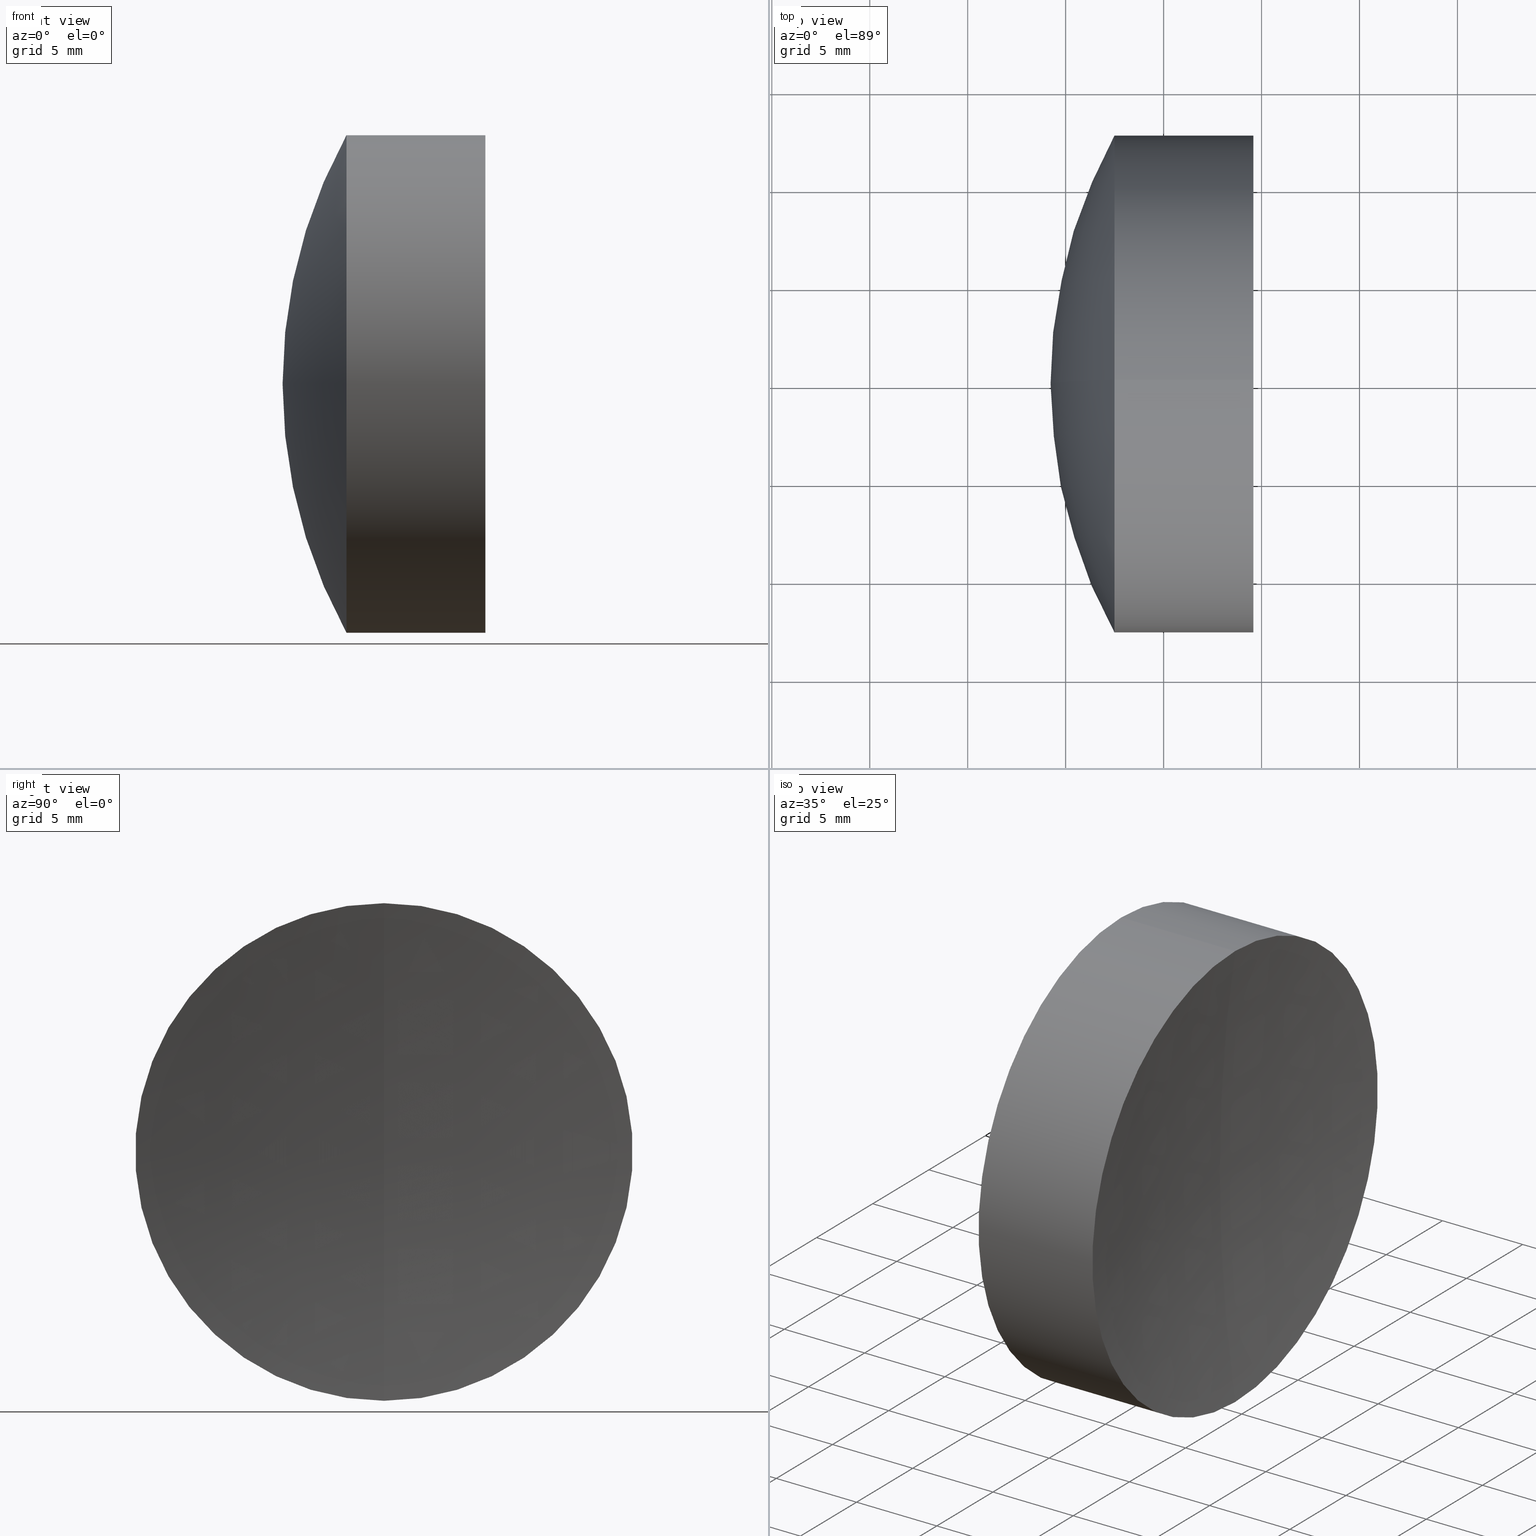
[diagram: canonical four-view strip — front | top / right | iso, engineering-drawing reading convention]
A machine part, canonical four-view strip (front | top / right | iso — engineering-drawing reading convention). The complete STEP part file that produces these views, byte-faithful:
ISO-10303-21;
HEADER;
FILE_DESCRIPTION (( 'STEP AP214' ),
    '1' );
FILE_NAME ('145164.STEP',
    '2019-06-07T06:22:06',
    ( 'user' ),
    ( '΢���й�' ),
    'SwSTEP 2.0',
    'SolidWorks 2016',
    '' );
FILE_SCHEMA (( 'AUTOMOTIVE_DESIGN' ));
ENDSEC;

DATA;
#1 = EDGE_CURVE ( 'NONE', #6, #327, #201, .T. ) ;
#2 = ORIENTED_EDGE ( 'NONE', *, *, #245, .T. ) ;
#3 = VECTOR ( 'NONE', #169, 1000.000000000000000 ) ;
#4 = DIRECTION ( 'NONE',  ( 0.0000000000000000000, 1.000000000000000000, 0.0000000000000000000 ) ) ;
#5 = AXIS2_PLACEMENT_3D ( 'NONE', #113, #80, #100 ) ;
#6 = VERTEX_POINT ( 'NONE', #75 ) ;
#7 = ORIENTED_EDGE ( 'NONE', *, *, #96, .F. ) ;
#8 = EDGE_CURVE ( 'NONE', #241, #327, #228, .T. ) ;
#9 = SPHERICAL_SURFACE ( 'NONE', #210, 84.92000000000000200 ) ;
#10 = DIRECTION ( 'NONE',  ( 0.0000000000000000000, 0.0000000000000000000, 1.000000000000000000 ) ) ;
#11 = PRODUCT ( '145164', '145164', '', ( #26 ) ) ;
#12 = EDGE_LOOP ( 'NONE', ( #7, #312, #51 ) ) ;
#13 = ORIENTED_EDGE ( 'NONE', *, *, #19, .F. ) ;
#14 = EDGE_CURVE ( 'NONE', #327, #318, #218, .T. ) ;
#15 = EDGE_CURVE ( 'NONE', #241, #6, #224, .T. ) ;
#16 = VERTEX_POINT ( 'NONE', #69 ) ;
#17 = ADVANCED_FACE ( 'NONE', ( #196 ), #195, .F. ) ;
#18 = ADVANCED_FACE ( 'NONE', ( #182 ), #181, .T. ) ;
#19 = EDGE_CURVE ( 'NONE', #6, #160, #177, .T. ) ;
#20 = APPLICATION_CONTEXT ( 'automotive_design' ) ;
#21 = ORIENTED_EDGE ( 'NONE', *, *, #114, .F. ) ;
#22 =( NAMED_UNIT ( * ) SI_UNIT ( $, .STERADIAN. ) SOLID_ANGLE_UNIT ( ) );
#23 = ORIENTED_EDGE ( 'NONE', *, *, #8, .F. ) ;
#24 = DIRECTION ( 'NONE',  ( 0.0000000000000000000, 0.0000000000000000000, 1.000000000000000000 ) ) ;
#25 = FILL_AREA_STYLE ('',( #56 ) ) ;
#26 = PRODUCT_CONTEXT ( 'NONE', #343, 'mechanical' ) ;
#27 =( LENGTH_UNIT ( ) NAMED_UNIT ( * ) SI_UNIT ( .MILLI., .METRE. ) );
#28 = CARTESIAN_POINT ( 'NONE',  ( 128.5502464302756800, 0.0000000000000000000, 0.0000000000000000000 ) ) ;
#29 = STYLED_ITEM ( 'NONE', ( #61 ), #211 ) ;
#30 = ORIENTED_EDGE ( 'NONE', *, *, #245, .F. ) ;
#31 = VERTEX_POINT ( 'NONE', #237 ) ;
#32 = ORIENTED_EDGE ( 'NONE', *, *, #345, .T. ) ;
#33 = ORIENTED_EDGE ( 'NONE', *, *, #340, .T. ) ;
#34 = CARTESIAN_POINT ( 'NONE',  ( -0.5519199926577972300, 1.555301434917140600E-015, -12.70000000000001700 ) ) ;
#35 = DIRECTION ( 'NONE',  ( -1.000000000000000000, -0.0000000000000000000, -0.0000000000000000000 ) ) ;
#36 = EDGE_CURVE ( 'NONE', #327, #6, #191, .T. ) ;
#37 = DIRECTION ( 'NONE',  ( -1.000000000000000000, -0.0000000000000000000, -0.0000000000000000000 ) ) ;
#38 = EDGE_CURVE ( 'NONE', #84, #188, #176, .T. ) ;
#39 = ORIENTED_EDGE ( 'NONE', *, *, #114, .T. ) ;
#40 = ORIENTED_EDGE ( 'NONE', *, *, #19, .T. ) ;
#41 = CARTESIAN_POINT ( 'NONE',  ( 60.59024643027568400, 0.0000000000000000000, 6.240728188754496800E-016 ) ) ;
#42 = CARTESIAN_POINT ( 'NONE',  ( 128.5502464302756800, 0.0000000000000000000, 0.0000000000000000000 ) ) ;
#43 = CARTESIAN_POINT ( 'NONE',  ( 41.83024643027569300, 0.0000000000000000000, -9.252400508641304000E-015 ) ) ;
#44 = ORIENTED_EDGE ( 'NONE', *, *, #96, .T. ) ;
#45 = EDGE_CURVE ( 'NONE', #303, #84, #214, .T. ) ;
#46 = SPHERICAL_SURFACE ( 'NONE', #146, 84.92000000000000200 ) ;
#47 = DIRECTION ( 'NONE',  ( 0.0000000000000000000, 0.0000000000000000000, -1.000000000000000000 ) ) ;
#48 = ORIENTED_EDGE ( 'NONE', *, *, #1, .F. ) ;
#49 = AXIS2_PLACEMENT_3D ( 'NONE', #68, #4, #52 ) ;
#50 = DIRECTION ( 'NONE',  ( -1.000000000000000000, -0.0000000000000000000, -0.0000000000000000000 ) ) ;
#51 = ORIENTED_EDGE ( 'NONE', *, *, #38, .T. ) ;
#52 = DIRECTION ( 'NONE',  ( 0.0000000000000000000, 0.0000000000000000000, 1.000000000000000000 ) ) ;
#53 = EDGE_CURVE ( 'NONE', #84, #253, #172, .T. ) ;
#54 = DIRECTION ( 'NONE',  ( 0.0000000000000000000, 0.0000000000000000000, 1.000000000000000000 ) ) ;
#55 =( NAMED_UNIT ( * ) SI_UNIT ( $, .STERADIAN. ) SOLID_ANGLE_UNIT ( ) );
#56 = FILL_AREA_STYLE_COLOUR ( '', #85 ) ;
#57 = ORIENTED_EDGE ( 'NONE', *, *, #274, .F. ) ;
#58 = CIRCLE ( 'NONE', #164, 12.70000000000001900 ) ;
#59 = AXIS2_PLACEMENT_3D ( 'NONE', #28, #283, #231 ) ;
#60 = ORIENTED_EDGE ( 'NONE', *, *, #36, .F. ) ;
#61 = PRESENTATION_STYLE_ASSIGNMENT (( #126 ) ) ;
#62 = CIRCLE ( 'NONE', #173, 26.36000000000001000 ) ;
#63 = UNCERTAINTY_MEASURE_WITH_UNIT (LENGTH_MEASURE( 1.000000000000000100E-005 ), #141, 'distance_accuracy_value', 'NONE');
#64 = DIRECTION ( 'NONE',  ( 0.0000000000000000000, 0.0000000000000000000, -1.000000000000000000 ) ) ;
#65 = AXIS2_PLACEMENT_3D ( 'NONE', #87, #174, #106 ) ;
#66 = CARTESIAN_POINT ( 'NONE',  ( 44.58527516249046100, -1.555301434917136900E-015, 12.69999999999998500 ) ) ;
#67 =( LENGTH_UNIT ( ) NAMED_UNIT ( * ) SI_UNIT ( .MILLI., .METRE. ) );
#68 = CARTESIAN_POINT ( 'NONE',  ( 12.45024643027568300, 0.0000000000000000000, -1.105140665658876700E-014 ) ) ;
#69 = CARTESIAN_POINT ( 'NONE',  ( 34.23024643027567700, 0.0000000000000000000, -9.900116624007624700E-016 ) ) ;
#70 = CLOSED_SHELL ( 'NONE', ( #161, #140, #266, #77, #216, #18 ) ) ;
#71 = CARTESIAN_POINT ( 'NONE',  ( 60.59024643027568400, 0.0000000000000000000, 6.240728188754496800E-016 ) ) ;
#72 = AXIS2_PLACEMENT_3D ( 'NONE', #78, #236, #226 ) ;
#73 = CARTESIAN_POINT ( 'NONE',  ( 38.94353614673029500, 0.0000000000000000000, 0.0000000000000000000 ) ) ;
#74 = ADVANCED_FACE ( 'NONE', ( #167 ), #168, .F. ) ;
#75 = CARTESIAN_POINT ( 'NONE',  ( 38.94353614673029500, 1.555301434917138000E-015, -12.69999999999999400 ) ) ;
#76 = CARTESIAN_POINT ( 'NONE',  ( 38.94353614673029500, 0.0000000000000000000, 12.69999999999999400 ) ) ;
#77 = ADVANCED_FACE ( 'NONE', ( #149 ), #145, .T. ) ;
#78 = CARTESIAN_POINT ( 'NONE',  ( 12.45024643027568300, 0.0000000000000000000, -1.105140665658876700E-014 ) ) ;
#79 = ORIENTED_EDGE ( 'NONE', *, *, #90, .F. ) ;
#80 = DIRECTION ( 'NONE',  ( 0.0000000000000000000, -1.000000000000000000, -1.224646799147353200E-016 ) ) ;
#81 = SURFACE_STYLE_USAGE ( .BOTH. , #187 ) ;
#82 = DIRECTION ( 'NONE',  ( -1.000000000000000000, -0.0000000000000000000, -0.0000000000000000000 ) ) ;
#83 = PRESENTATION_LAYER_ASSIGNMENT (  '', '', ( #29 ) ) ;
#84 = VERTEX_POINT ( 'NONE', #334 ) ;
#85 = COLOUR_RGB ( '',1.000000000000000000, 1.000000000000000000, 1.000000000000000000 ) ;
#86 = FACE_OUTER_BOUND ( 'NONE', #12, .T. ) ;
#87 = CARTESIAN_POINT ( 'NONE',  ( 12.45024643027568300, 0.0000000000000000000, -1.105140665658876700E-014 ) ) ;
#88 = ORIENTED_EDGE ( 'NONE', *, *, #8, .T. ) ;
#89 = DIRECTION ( 'NONE',  ( -1.000000000000000000, -0.0000000000000000000, -0.0000000000000000000 ) ) ;
#90 = EDGE_CURVE ( 'NONE', #253, #31, #157, .T. ) ;
#91 = SURFACE_SIDE_STYLE ('',( #97 ) ) ;
#92 = CARTESIAN_POINT ( 'NONE',  ( -0.5519199926577972300, 0.0000000000000000000, 12.70000000000001700 ) ) ;
#93 = CARTESIAN_POINT ( 'NONE',  ( 37.49133736512716600, 0.0000000000000000000, 0.0000000000000000000 ) ) ;
#94 = SPHERICAL_SURFACE ( 'NONE', #162, 26.36000000000001000 ) ;
#95 = SHAPE_DEFINITION_REPRESENTATION ( #118, #136 ) ;
#96 = EDGE_CURVE ( 'NONE', #303, #188, #148, .T. ) ;
#97 = SURFACE_STYLE_FILL_AREA ( #294 ) ;
#98 = ORIENTED_EDGE ( 'NONE', *, *, #14, .T. ) ;
#99 = CYLINDRICAL_SURFACE ( 'NONE', #219, 12.70000000000001700 ) ;
#100 = DIRECTION ( 'NONE',  ( 0.0000000000000000000, 1.224646799147353200E-016, -1.000000000000000000 ) ) ;
#101 = COLOUR_RGB ( '',1.000000000000000000, 1.000000000000000000, 1.000000000000000000 ) ;
#102 = AXIS2_PLACEMENT_3D ( 'NONE', #313, #273, #123 ) ;
#103 = CIRCLE ( 'NONE', #203, 12.70000000000001700 ) ;
#104 = CARTESIAN_POINT ( 'NONE',  ( 12.45024643027568300, 0.0000000000000000000, -1.105140665658876700E-014 ) ) ;
#105 = AXIS2_PLACEMENT_3D ( 'NONE', #150, #82, #323 ) ;
#106 = DIRECTION ( 'NONE',  ( 0.0000000000000000000, -1.224646799147353200E-016, 1.000000000000000000 ) ) ;
#107 = ADVANCED_FACE ( 'NONE', ( #125 ), #124, .T. ) ;
#108 = CIRCLE ( 'NONE', #127, 29.38000000000000600 ) ;
#109 = CIRCLE ( 'NONE', #336, 26.36000000000001000 ) ;
#110 = CARTESIAN_POINT ( 'NONE',  ( 12.45024643027568300, 0.0000000000000000000, -1.105140665658876700E-014 ) ) ;
#111 = DIRECTION ( 'NONE',  ( 0.0000000000000000000, 0.0000000000000000000, 1.000000000000000000 ) ) ;
#112 = DIRECTION ( 'NONE',  ( 0.0000000000000000000, -1.000000000000000000, 0.0000000000000000000 ) ) ;
#113 = CARTESIAN_POINT ( 'NONE',  ( 128.5502464302756800, 0.0000000000000000000, 0.0000000000000000000 ) ) ;
#114 = EDGE_CURVE ( 'NONE', #232, #253, #117, .T. ) ;
#115 = EDGE_LOOP ( 'NONE', ( #13, #272, #98, #30 ) ) ;
#116 = CYLINDRICAL_SURFACE ( 'NONE', #105, 12.69999999999999400 ) ;
#117 = CIRCLE ( 'NONE', #215, 29.38000000000000600 ) ;
#118 = PRODUCT_DEFINITION_SHAPE ( 'NONE', 'NONE',  #320 ) ;
#119 = DIRECTION ( 'NONE',  ( 0.0000000000000000000, 0.0000000000000000000, 1.000000000000000000 ) ) ;
#120 = DIRECTION ( 'NONE',  ( -1.000000000000000000, -0.0000000000000000000, -0.0000000000000000000 ) ) ;
#121 = SPHERICAL_SURFACE ( 'NONE', #72, 29.37999999999999900 ) ;
#122 = AXIS2_PLACEMENT_3D ( 'NONE', #71, #138, #194 ) ;
#123 = DIRECTION ( 'NONE',  ( 0.0000000000000000000, 0.0000000000000000000, -1.000000000000000000 ) ) ;
#124 = CYLINDRICAL_SURFACE ( 'NONE', #132, 12.70000000000001700 ) ;
#125 = FACE_OUTER_BOUND ( 'NONE', #275, .T. ) ;
#126 = SURFACE_STYLE_USAGE ( .BOTH. , #91 ) ;
#127 = AXIS2_PLACEMENT_3D ( 'NONE', #286, #112, #339 ) ;
#128 = AXIS2_PLACEMENT_3D ( 'NONE', #73, #319, #163 ) ;
#129 = FACE_OUTER_BOUND ( 'NONE', #171, .T. ) ;
#130 = DIRECTION ( 'NONE',  ( 1.000000000000000000, 0.0000000000000000000, 0.0000000000000000000 ) ) ;
#131 = FACE_OUTER_BOUND ( 'NONE', #287, .T. ) ;
#132 = AXIS2_PLACEMENT_3D ( 'NONE', #143, #295, #54 ) ;
#133 = FACE_OUTER_BOUND ( 'NONE', #235, .T. ) ;
#134 = APPLICATION_PROTOCOL_DEFINITION ( 'draft international standard', 'automotive_design', 1998, #20 ) ;
#135 = DIRECTION ( 'NONE',  ( 0.0000000000000000000, -1.224646799147353200E-016, 1.000000000000000000 ) ) ;
#136 = ADVANCED_BREP_SHAPE_REPRESENTATION ( '145164', ( #304, #211, #302 ), #223 ) ;
#137 = CIRCLE ( 'NONE', #151, 12.69999999999999400 ) ;
#138 = DIRECTION ( 'NONE',  ( -0.0000000000000000000, -1.000000000000000000, -0.0000000000000000000 ) ) ;
#139 = SURFACE_STYLE_FILL_AREA ( #25 ) ;
#140 = ADVANCED_FACE ( 'NONE', ( #153 ), #116, .T. ) ;
#141 =( LENGTH_UNIT ( ) NAMED_UNIT ( * ) SI_UNIT ( .MILLI., .METRE. ) );
#142 =( GEOMETRIC_REPRESENTATION_CONTEXT ( 3 ) GLOBAL_UNCERTAINTY_ASSIGNED_CONTEXT ( ( #315 ) ) GLOBAL_UNIT_ASSIGNED_CONTEXT ( ( #67, #254, #208 ) ) REPRESENTATION_CONTEXT ( 'NONE', 'WORKASPACE' ) );
#143 = CARTESIAN_POINT ( 'NONE',  ( -0.5519199926577972300, 0.0000000000000000000, 0.0000000000000000000 ) ) ;
#144 = DIRECTION ( 'NONE',  ( 0.0000000000000000000, 0.0000000000000000000, 1.000000000000000000 ) ) ;
#145 = SPHERICAL_SURFACE ( 'NONE', #122, 26.36000000000001000 ) ;
#146 = AXIS2_PLACEMENT_3D ( 'NONE', #42, #227, #64 ) ;
#147 = AXIS2_PLACEMENT_3D ( 'NONE', #154, #300, #111 ) ;
#148 = CIRCLE ( 'NONE', #5, 84.92000000000000200 ) ;
#149 = FACE_OUTER_BOUND ( 'NONE', #330, .T. ) ;
#150 = CARTESIAN_POINT ( 'NONE',  ( -0.8160621761658039000, 0.0000000000000000000, 0.0000000000000000000 ) ) ;
#151 = AXIS2_PLACEMENT_3D ( 'NONE', #93, #37, #332 ) ;
#152 = EDGE_CURVE ( 'NONE', #232, #31, #108, .T. ) ;
#153 = FACE_OUTER_BOUND ( 'NONE', #225, .T. ) ;
#154 = CARTESIAN_POINT ( 'NONE',  ( 12.45024643027568300, 0.0000000000000000000, -1.105140665658876700E-014 ) ) ;
#155 = STYLED_ITEM ( 'NONE', ( #183 ), #304 ) ;
#156 = DIRECTION ( 'NONE',  ( 0.0000000000000000000, 0.0000000000000000000, 1.000000000000000000 ) ) ;
#157 = CIRCLE ( 'NONE', #328, 12.70000000000001900 ) ;
#158 = AXIS2_PLACEMENT_3D ( 'NONE', #264, #89, #24 ) ;
#159 = VECTOR ( 'NONE', #290, 1000.000000000000000 ) ;
#160 = VERTEX_POINT ( 'NONE', #346 ) ;
#161 = ADVANCED_FACE ( 'NONE', ( #129 ), #121, .T. ) ;
#162 = AXIS2_PLACEMENT_3D ( 'NONE', #333, #206, #47 ) ;
#163 = DIRECTION ( 'NONE',  ( 0.0000000000000000000, 0.0000000000000000000, 1.000000000000000000 ) ) ;
#164 = AXIS2_PLACEMENT_3D ( 'NONE', #170, #120, #337 ) ;
#165 =( NAMED_UNIT ( * ) PLANE_ANGLE_UNIT ( ) SI_UNIT ( $, .RADIAN. ) );
#166 = EDGE_CURVE ( 'NONE', #318, #16, #109, .T. ) ;
#167 = FACE_OUTER_BOUND ( 'NONE', #263, .T. ) ;
#168 = SPHERICAL_SURFACE ( 'NONE', #147, 29.38000000000000600 ) ;
#169 = DIRECTION ( 'NONE',  ( -1.000000000000000000, -0.0000000000000000000, -0.0000000000000000000 ) ) ;
#170 = CARTESIAN_POINT ( 'NONE',  ( 38.94353614673030300, 0.0000000000000000000, 0.0000000000000000000 ) ) ;
#171 = EDGE_LOOP ( 'NONE', ( #23, #299, #60 ) ) ;
#172 = LINE ( 'NONE', #34, #159 ) ;
#173 = AXIS2_PLACEMENT_3D ( 'NONE', #205, #175, #156 ) ;
#174 = DIRECTION ( 'NONE',  ( -0.0000000000000000000, 1.000000000000000000, 1.224646799147353200E-016 ) ) ;
#175 = DIRECTION ( 'NONE',  ( 0.0000000000000000000, 1.000000000000000000, -0.0000000000000000000 ) ) ;
#176 = CIRCLE ( 'NONE', #59, 84.92000000000000200 ) ;
#177 = LINE ( 'NONE', #204, #186 ) ;
#178 = AXIS2_PLACEMENT_3D ( 'NONE', #331, #309, #279 ) ;
#179 = DIRECTION ( 'NONE',  ( 0.0000000000000000000, -1.000000000000000000, -1.224646799147353200E-016 ) ) ;
#180 = PRESENTATION_LAYER_ASSIGNMENT (  '', '', ( #155 ) ) ;
#181 = SPHERICAL_SURFACE ( 'NONE', #49, 29.37999999999999900 ) ;
#182 = FACE_OUTER_BOUND ( 'NONE', #322, .T. ) ;
#183 = PRESENTATION_STYLE_ASSIGNMENT (( #81 ) ) ;
#184 = FACE_OUTER_BOUND ( 'NONE', #212, .T. ) ;
#185 = MECHANICAL_DESIGN_GEOMETRIC_PRESENTATION_REPRESENTATION (  '', ( #155 ), #193 ) ;
#186 = VECTOR ( 'NONE', #50, 1000.000000000000000 ) ;
#187 = SURFACE_SIDE_STYLE ('',( #270 ) ) ;
#188 = VERTEX_POINT ( 'NONE', #213 ) ;
#189 = CYLINDRICAL_SURFACE ( 'NONE', #178, 12.69999999999999400 ) ;
#190 = DIRECTION ( 'NONE',  ( 0.0000000000000000000, 0.0000000000000000000, 1.000000000000000000 ) ) ;
#191 = CIRCLE ( 'NONE', #158, 12.69999999999999400 ) ;
#192 = COLOUR_RGB ( '',1.000000000000000000, 1.000000000000000000, 1.000000000000000000 ) ;
#193 =( GEOMETRIC_REPRESENTATION_CONTEXT ( 3 ) GLOBAL_UNCERTAINTY_ASSIGNED_CONTEXT ( ( #257 ) ) GLOBAL_UNIT_ASSIGNED_CONTEXT ( ( #27, #221, #55 ) ) REPRESENTATION_CONTEXT ( 'NONE', 'WORKASPACE' ) );
#194 = DIRECTION ( 'NONE',  ( 0.0000000000000000000, 0.0000000000000000000, -1.000000000000000000 ) ) ;
#195 = SPHERICAL_SURFACE ( 'NONE', #329, 29.38000000000000600 ) ;
#196 = FACE_OUTER_BOUND ( 'NONE', #307, .T. ) ;
#197 = UNCERTAINTY_MEASURE_WITH_UNIT (LENGTH_MEASURE( 1.000000000000000100E-005 ), #297, 'distance_accuracy_value', 'NONE');
#198 = FACE_OUTER_BOUND ( 'NONE', #115, .T. ) ;
#199 = AXIS2_PLACEMENT_3D ( 'NONE', #246, #248, #144 ) ;
#200 = VECTOR ( 'NONE', #259, 1000.000000000000000 ) ;
#201 = CIRCLE ( 'NONE', #128, 12.69999999999999400 ) ;
#202 = CARTESIAN_POINT ( 'NONE',  ( 41.83024643027568600, 0.0000000000000000000, -9.252400508641304000E-015 ) ) ;
#203 = AXIS2_PLACEMENT_3D ( 'NONE', #308, #347, #190 ) ;
#204 = CARTESIAN_POINT ( 'NONE',  ( -0.8160621761658039000, 1.555301434917138000E-015, -12.69999999999999400 ) ) ;
#205 = CARTESIAN_POINT ( 'NONE',  ( 60.59024643027568400, 0.0000000000000000000, 6.240728188754496800E-016 ) ) ;
#206 = DIRECTION ( 'NONE',  ( -0.0000000000000000000, -1.000000000000000000, -0.0000000000000000000 ) ) ;
#207 = DIRECTION ( 'NONE',  ( -1.000000000000000000, -0.0000000000000000000, -0.0000000000000000000 ) ) ;
#208 =( NAMED_UNIT ( * ) SI_UNIT ( $, .STERADIAN. ) SOLID_ANGLE_UNIT ( ) );
#209 = ORIENTED_EDGE ( 'NONE', *, *, #38, .F. ) ;
#210 = AXIS2_PLACEMENT_3D ( 'NONE', #289, #243, #296 ) ;
#211 = MANIFOLD_SOLID_BREP ( '��ת2', #280 ) ;
#212 = EDGE_LOOP ( 'NONE', ( #240, #32, #335, #79 ) ) ;
#213 = CARTESIAN_POINT ( 'NONE',  ( 43.63024643027569000, 0.0000000000000000000, -5.199850309179661400E-015 ) ) ;
#214 = CIRCLE ( 'NONE', #242, 12.70000000000001700 ) ;
#215 = AXIS2_PLACEMENT_3D ( 'NONE', #104, #292, #135 ) ;
#216 = ADVANCED_FACE ( 'NONE', ( #198 ), #189, .T. ) ;
#217 = DIRECTION ( 'NONE',  ( -1.000000000000000000, -0.0000000000000000000, -0.0000000000000000000 ) ) ;
#218 = LINE ( 'NONE', #252, #200 ) ;
#219 = AXIS2_PLACEMENT_3D ( 'NONE', #267, #217, #239 ) ;
#220 =( NAMED_UNIT ( * ) SI_UNIT ( $, .STERADIAN. ) SOLID_ANGLE_UNIT ( ) );
#221 =( NAMED_UNIT ( * ) PLANE_ANGLE_UNIT ( ) SI_UNIT ( $, .RADIAN. ) );
#222 = ORIENTED_EDGE ( 'NONE', *, *, #14, .F. ) ;
#223 =( GEOMETRIC_REPRESENTATION_CONTEXT ( 3 ) GLOBAL_UNCERTAINTY_ASSIGNED_CONTEXT ( ( #63 ) ) GLOBAL_UNIT_ASSIGNED_CONTEXT ( ( #141, #325, #22 ) ) REPRESENTATION_CONTEXT ( 'NONE', 'WORKASPACE' ) );
#224 = CIRCLE ( 'NONE', #65, 29.37999999999999900 ) ;
#225 = EDGE_LOOP ( 'NONE', ( #234, #40, #260, #222 ) ) ;
#226 = DIRECTION ( 'NONE',  ( 0.0000000000000000000, 0.0000000000000000000, 1.000000000000000000 ) ) ;
#227 = DIRECTION ( 'NONE',  ( -0.0000000000000000000, -1.000000000000000000, -0.0000000000000000000 ) ) ;
#228 = CIRCLE ( 'NONE', #102, 29.37999999999999900 ) ;
#229 = STYLED_ITEM ( 'NONE', ( #249 ), #136 ) ;
#230 = ORIENTED_EDGE ( 'NONE', *, *, #53, .T. ) ;
#231 = DIRECTION ( 'NONE',  ( 0.0000000000000000000, 0.0000000000000000000, 1.000000000000000000 ) ) ;
#232 = VERTEX_POINT ( 'NONE', #43 ) ;
#233 = CARTESIAN_POINT ( 'NONE',  ( 0.0000000000000000000, 0.0000000000000000000, 0.0000000000000000000 ) ) ;
#234 = ORIENTED_EDGE ( 'NONE', *, *, #36, .T. ) ;
#235 = EDGE_LOOP ( 'NONE', ( #256, #44, #209 ) ) ;
#236 = DIRECTION ( 'NONE',  ( 0.0000000000000000000, 1.000000000000000000, 0.0000000000000000000 ) ) ;
#237 = CARTESIAN_POINT ( 'NONE',  ( 38.94353614673030300, 0.0000000000000000000, 12.70000000000001000 ) ) ;
#238 = ADVANCED_FACE ( 'NONE', ( #133 ), #46, .F. ) ;
#239 = DIRECTION ( 'NONE',  ( 0.0000000000000000000, 0.0000000000000000000, 1.000000000000000000 ) ) ;
#240 = ORIENTED_EDGE ( 'NONE', *, *, #53, .F. ) ;
#241 = VERTEX_POINT ( 'NONE', #202 ) ;
#242 = AXIS2_PLACEMENT_3D ( 'NONE', #316, #207, #310 ) ;
#243 = DIRECTION ( 'NONE',  ( -0.0000000000000000000, -1.000000000000000000, -0.0000000000000000000 ) ) ;
#244 = DIRECTION ( 'NONE',  ( 0.0000000000000000000, 1.000000000000000000, 0.0000000000000000000 ) ) ;
#245 = EDGE_CURVE ( 'NONE', #160, #318, #137, .T. ) ;
#246 = CARTESIAN_POINT ( 'NONE',  ( 37.49133736512716600, 0.0000000000000000000, 0.0000000000000000000 ) ) ;
#247 = ORIENTED_EDGE ( 'NONE', *, *, #274, .T. ) ;
#248 = DIRECTION ( 'NONE',  ( -1.000000000000000000, -0.0000000000000000000, -0.0000000000000000000 ) ) ;
#249 = PRESENTATION_STYLE_ASSIGNMENT (( #271 ) ) ;
#250 = MECHANICAL_DESIGN_GEOMETRIC_PRESENTATION_REPRESENTATION (  '', ( #229 ), #269 ) ;
#251 = ORIENTED_EDGE ( 'NONE', *, *, #262, .F. ) ;
#252 = CARTESIAN_POINT ( 'NONE',  ( -0.8160621761658039000, 0.0000000000000000000, 12.69999999999999400 ) ) ;
#253 = VERTEX_POINT ( 'NONE', #278 ) ;
#254 =( NAMED_UNIT ( * ) PLANE_ANGLE_UNIT ( ) SI_UNIT ( $, .RADIAN. ) );
#255 = PRESENTATION_LAYER_ASSIGNMENT (  '', '', ( #229 ) ) ;
#256 = ORIENTED_EDGE ( 'NONE', *, *, #45, .F. ) ;
#257 = UNCERTAINTY_MEASURE_WITH_UNIT (LENGTH_MEASURE( 1.000000000000000100E-005 ), #27, 'distance_accuracy_value', 'NONE');
#258 = ORIENTED_EDGE ( 'NONE', *, *, #262, .T. ) ;
#259 = DIRECTION ( 'NONE',  ( -1.000000000000000000, -0.0000000000000000000, -0.0000000000000000000 ) ) ;
#260 = ORIENTED_EDGE ( 'NONE', *, *, #340, .F. ) ;
#261 = CARTESIAN_POINT ( 'NONE',  ( 37.49133736512716600, -1.555301434917138000E-015, 12.69999999999999600 ) ) ;
#262 = EDGE_CURVE ( 'NONE', #160, #16, #62, .T. ) ;
#263 = EDGE_LOOP ( 'NONE', ( #268, #39, #338 ) ) ;
#264 = CARTESIAN_POINT ( 'NONE',  ( 38.94353614673029500, 0.0000000000000000000, 0.0000000000000000000 ) ) ;
#265 = PRODUCT_DEFINITION_CONTEXT ( 'detailed design', #20, 'design' ) ;
#266 = ADVANCED_FACE ( 'NONE', ( #131 ), #94, .T. ) ;
#267 = CARTESIAN_POINT ( 'NONE',  ( -0.5519199926577972300, 0.0000000000000000000, 0.0000000000000000000 ) ) ;
#268 = ORIENTED_EDGE ( 'NONE', *, *, #152, .F. ) ;
#269 =( GEOMETRIC_REPRESENTATION_CONTEXT ( 3 ) GLOBAL_UNCERTAINTY_ASSIGNED_CONTEXT ( ( #197 ) ) GLOBAL_UNIT_ASSIGNED_CONTEXT ( ( #297, #165, #220 ) ) REPRESENTATION_CONTEXT ( 'NONE', 'WORKASPACE' ) );
#270 = SURFACE_STYLE_FILL_AREA ( #281 ) ;
#271 = SURFACE_STYLE_USAGE ( .BOTH. , #326 ) ;
#272 = ORIENTED_EDGE ( 'NONE', *, *, #1, .T. ) ;
#273 = DIRECTION ( 'NONE',  ( 0.0000000000000000000, -1.000000000000000000, 0.0000000000000000000 ) ) ;
#274 = EDGE_CURVE ( 'NONE', #31, #253, #58, .T. ) ;
#275 = EDGE_LOOP ( 'NONE', ( #317, #230, #57, #341 ) ) ;
#276 = LINE ( 'NONE', #92, #3 ) ;
#277 = EDGE_CURVE ( 'NONE', #303, #31, #276, .T. ) ;
#278 = CARTESIAN_POINT ( 'NONE',  ( 38.94353614673030300, 1.555301434917139600E-015, -12.70000000000002100 ) ) ;
#279 = DIRECTION ( 'NONE',  ( 0.0000000000000000000, 0.0000000000000000000, 1.000000000000000000 ) ) ;
#280 = CLOSED_SHELL ( 'NONE', ( #107, #238, #74, #17, #342, #324 ) ) ;
#281 = FILL_AREA_STYLE ('',( #282 ) ) ;
#282 = FILL_AREA_STYLE_COLOUR ( '', #192 ) ;
#283 = DIRECTION ( 'NONE',  ( 0.0000000000000000000, 1.000000000000000000, -0.0000000000000000000 ) ) ;
#284 = PRODUCT_RELATED_PRODUCT_CATEGORY ( 'part', '', ( #11 ) ) ;
#285 = DIRECTION ( 'NONE',  ( 0.0000000000000000000, 0.0000000000000000000, 1.000000000000000000 ) ) ;
#286 = CARTESIAN_POINT ( 'NONE',  ( 12.45024643027568300, 0.0000000000000000000, -1.105140665658876700E-014 ) ) ;
#287 = EDGE_LOOP ( 'NONE', ( #2, #321, #251 ) ) ;
#288 = APPLICATION_PROTOCOL_DEFINITION ( 'draft international standard', 'automotive_design', 1998, #343 ) ;
#289 = CARTESIAN_POINT ( 'NONE',  ( 128.5502464302756800, 0.0000000000000000000, 0.0000000000000000000 ) ) ;
#290 = DIRECTION ( 'NONE',  ( -1.000000000000000000, -0.0000000000000000000, -0.0000000000000000000 ) ) ;
#291 = ORIENTED_EDGE ( 'NONE', *, *, #166, .F. ) ;
#292 = DIRECTION ( 'NONE',  ( -0.0000000000000000000, 1.000000000000000000, 1.224646799147353200E-016 ) ) ;
#293 = CARTESIAN_POINT ( 'NONE',  ( 38.94353614673030300, 0.0000000000000000000, 0.0000000000000000000 ) ) ;
#294 = FILL_AREA_STYLE ('',( #344 ) ) ;
#295 = DIRECTION ( 'NONE',  ( -1.000000000000000000, -0.0000000000000000000, -0.0000000000000000000 ) ) ;
#296 = DIRECTION ( 'NONE',  ( 0.0000000000000000000, 0.0000000000000000000, -1.000000000000000000 ) ) ;
#297 =( LENGTH_UNIT ( ) NAMED_UNIT ( * ) SI_UNIT ( .MILLI., .METRE. ) );
#298 = ORIENTED_EDGE ( 'NONE', *, *, #15, .F. ) ;
#299 = ORIENTED_EDGE ( 'NONE', *, *, #15, .T. ) ;
#300 = DIRECTION ( 'NONE',  ( 0.0000000000000000000, 1.000000000000000000, 0.0000000000000000000 ) ) ;
#301 = CIRCLE ( 'NONE', #199, 12.69999999999999400 ) ;
#302 = AXIS2_PLACEMENT_3D ( 'NONE', #233, #10, #130 ) ;
#303 = VERTEX_POINT ( 'NONE', #66 ) ;
#304 = MANIFOLD_SOLID_BREP ( '��ת1', #70 ) ;
#305 = PRODUCT_DEFINITION_FORMATION_WITH_SPECIFIED_SOURCE ( '�κ�', '', #11, .NOT_KNOWN. ) ;
#306 = DIRECTION ( 'NONE',  ( 0.0000000000000000000, 1.224646799147353200E-016, -1.000000000000000000 ) ) ;
#307 = EDGE_LOOP ( 'NONE', ( #21, #311, #247 ) ) ;
#308 = CARTESIAN_POINT ( 'NONE',  ( 44.58527516249045400, 0.0000000000000000000, 0.0000000000000000000 ) ) ;
#309 = DIRECTION ( 'NONE',  ( -1.000000000000000000, -0.0000000000000000000, -0.0000000000000000000 ) ) ;
#310 = DIRECTION ( 'NONE',  ( 0.0000000000000000000, 0.0000000000000000000, 1.000000000000000000 ) ) ;
#311 = ORIENTED_EDGE ( 'NONE', *, *, #152, .T. ) ;
#312 = ORIENTED_EDGE ( 'NONE', *, *, #345, .F. ) ;
#313 = CARTESIAN_POINT ( 'NONE',  ( 12.45024643027568300, 0.0000000000000000000, -1.105140665658876700E-014 ) ) ;
#314 = MECHANICAL_DESIGN_GEOMETRIC_PRESENTATION_REPRESENTATION (  '', ( #29 ), #142 ) ;
#315 = UNCERTAINTY_MEASURE_WITH_UNIT (LENGTH_MEASURE( 1.000000000000000100E-005 ), #67, 'distance_accuracy_value', 'NONE');
#316 = CARTESIAN_POINT ( 'NONE',  ( 44.58527516249045400, 0.0000000000000000000, 0.0000000000000000000 ) ) ;
#317 = ORIENTED_EDGE ( 'NONE', *, *, #45, .T. ) ;
#318 = VERTEX_POINT ( 'NONE', #261 ) ;
#319 = DIRECTION ( 'NONE',  ( -1.000000000000000000, -0.0000000000000000000, -0.0000000000000000000 ) ) ;
#320 = PRODUCT_DEFINITION ( 'δ֪', '', #305, #265 ) ;
#321 = ORIENTED_EDGE ( 'NONE', *, *, #166, .T. ) ;
#322 = EDGE_LOOP ( 'NONE', ( #298, #88, #48 ) ) ;
#323 = DIRECTION ( 'NONE',  ( 0.0000000000000000000, 0.0000000000000000000, 1.000000000000000000 ) ) ;
#324 = ADVANCED_FACE ( 'NONE', ( #184 ), #99, .T. ) ;
#325 =( NAMED_UNIT ( * ) PLANE_ANGLE_UNIT ( ) SI_UNIT ( $, .RADIAN. ) );
#326 = SURFACE_SIDE_STYLE ('',( #139 ) ) ;
#327 = VERTEX_POINT ( 'NONE', #76 ) ;
#328 = AXIS2_PLACEMENT_3D ( 'NONE', #293, #35, #285 ) ;
#329 = AXIS2_PLACEMENT_3D ( 'NONE', #110, #244, #119 ) ;
#330 = EDGE_LOOP ( 'NONE', ( #291, #33, #258 ) ) ;
#331 = CARTESIAN_POINT ( 'NONE',  ( -0.8160621761658039000, 0.0000000000000000000, 0.0000000000000000000 ) ) ;
#332 = DIRECTION ( 'NONE',  ( 0.0000000000000000000, 0.0000000000000000000, 1.000000000000000000 ) ) ;
#333 = CARTESIAN_POINT ( 'NONE',  ( 60.59024643027568400, 0.0000000000000000000, 6.240728188754496800E-016 ) ) ;
#334 = CARTESIAN_POINT ( 'NONE',  ( 44.58527516249046100, 0.0000000000000000000, -12.69999999999998500 ) ) ;
#335 = ORIENTED_EDGE ( 'NONE', *, *, #277, .T. ) ;
#336 = AXIS2_PLACEMENT_3D ( 'NONE', #41, #179, #306 ) ;
#337 = DIRECTION ( 'NONE',  ( 0.0000000000000000000, 0.0000000000000000000, 1.000000000000000000 ) ) ;
#338 = ORIENTED_EDGE ( 'NONE', *, *, #90, .T. ) ;
#339 = DIRECTION ( 'NONE',  ( 0.0000000000000000000, 0.0000000000000000000, -1.000000000000000000 ) ) ;
#340 = EDGE_CURVE ( 'NONE', #318, #160, #301, .T. ) ;
#341 = ORIENTED_EDGE ( 'NONE', *, *, #277, .F. ) ;
#342 = ADVANCED_FACE ( 'NONE', ( #86 ), #9, .F. ) ;
#343 = APPLICATION_CONTEXT ( 'automotive_design' ) ;
#344 = FILL_AREA_STYLE_COLOUR ( '', #101 ) ;
#345 = EDGE_CURVE ( 'NONE', #84, #303, #103, .T. ) ;
#346 = CARTESIAN_POINT ( 'NONE',  ( 37.49133736512716600, 0.0000000000000000000, -12.69999999999999600 ) ) ;
#347 = DIRECTION ( 'NONE',  ( -1.000000000000000000, -0.0000000000000000000, -0.0000000000000000000 ) ) ;
ENDSEC;
END-ISO-10303-21;
